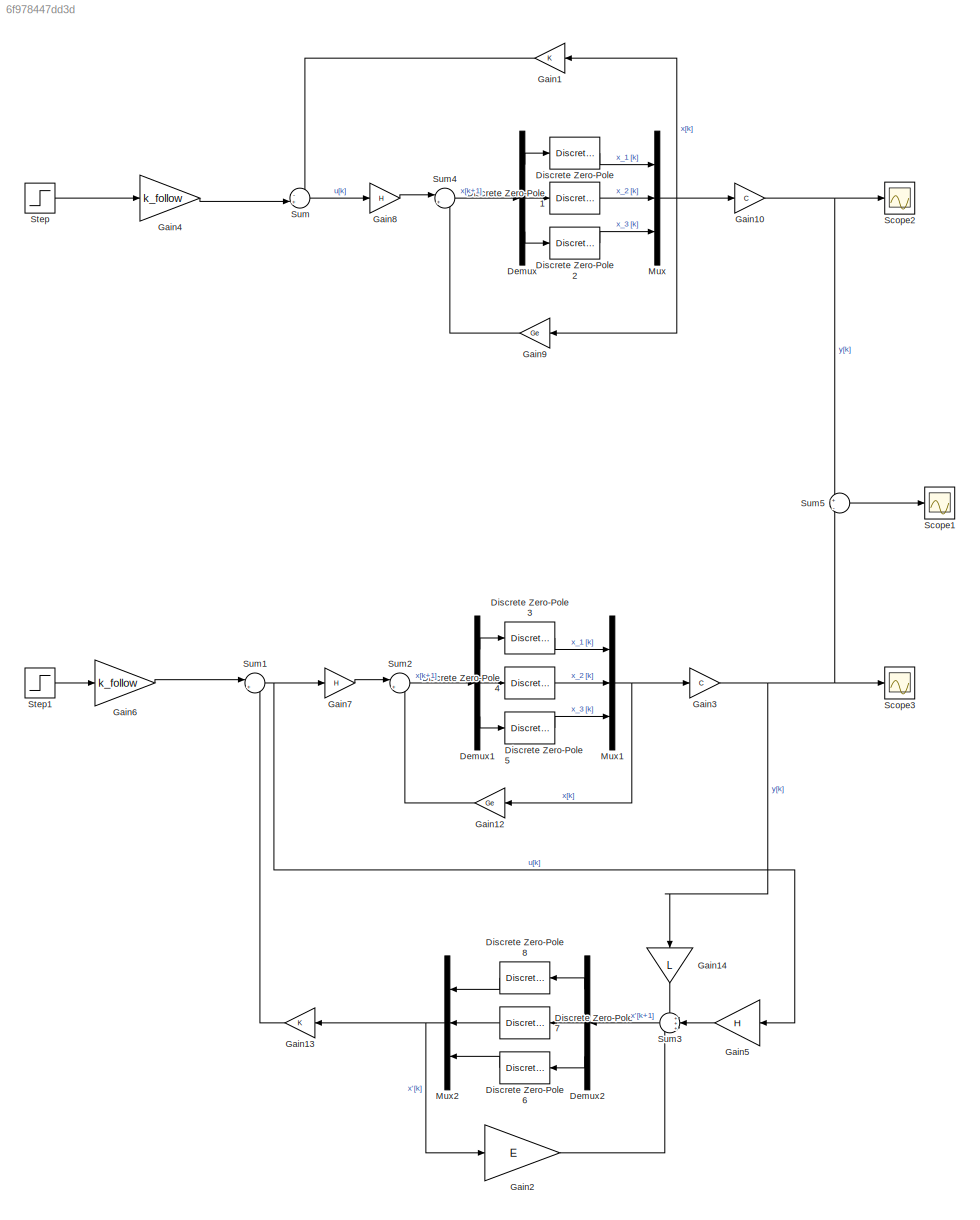
MODEL slx_6f978447dd3d
KIND model
CONFIG AbsTol = auto
CONFIG EnableMultiTasking = off
CONFIG FixedStep = auto
CONFIG MaxStep = auto
CONFIG MinStep = auto
CONFIG RelTol = 1e-3
CONFIG SampleTimeConstraint = Unconstrained
CONFIG SolverName = VariableStepAuto
CONFIG StartTime = 0.0
CONFIG StopTime = 5
BLOCK [Demux] Demux
  Outputs = 3
  Ports = [1, 3]
BLOCK [Demux] Demux1
  Outputs = 3
  Ports = [1, 3]
BLOCK [Demux] Demux2
  Outputs = 3
  Ports = [1, 3]
BLOCK [DiscreteZeroPole] Discrete Zero-Pole
  Gain = 1
  Poles = [0]
  SampleTime = Ts(2)
  Zeros = []
BLOCK [DiscreteZeroPole] Discrete Zero-Pole1
  Gain = 1
  Poles = [0]
  SampleTime = Ts(2)
  Zeros = []
BLOCK [DiscreteZeroPole] Discrete Zero-Pole2
  Gain = 1
  Poles = [0]
  SampleTime = Ts(2)
  Zeros = []
BLOCK [DiscreteZeroPole] Discrete Zero-Pole3
  Gain = 1
  Poles = [0]
  SampleTime = Ts(2)
  Zeros = []
BLOCK [DiscreteZeroPole] Discrete Zero-Pole4
  Gain = 1
  Poles = [0]
  SampleTime = Ts(2)
  Zeros = []
BLOCK [DiscreteZeroPole] Discrete Zero-Pole5
  Gain = 1
  Poles = [0]
  SampleTime = Ts(2)
  Zeros = []
BLOCK [DiscreteZeroPole] Discrete Zero-Pole6
  Gain = 1
  NameLocation = top
  Poles = [0]
  SampleTime = Ts(2)
  Zeros = []
BLOCK [DiscreteZeroPole] Discrete Zero-Pole7
  Gain = 1
  NameLocation = top
  Poles = [0]
  SampleTime = Ts(2)
  Zeros = []
BLOCK [DiscreteZeroPole] Discrete Zero-Pole8
  Gain = 1
  NameLocation = top
  Poles = [0]
  SampleTime = Ts(2)
  Zeros = []
BLOCK [Gain] Gain1
  Gain = K
  Multiplication = Matrix(K*u)
  NameLocation = top
BLOCK [Gain] Gain10
  Gain = C
  Multiplication = Matrix(K*u)
BLOCK [Gain] Gain12
  Gain = Ge
  Multiplication = Matrix(K*u)
  NameLocation = top
BLOCK [Gain] Gain13
  Gain = K
  Multiplication = Matrix(K*u)
  NameLocation = top
BLOCK [Gain] Gain14
  Gain = L
  Multiplication = Matrix(K*u)
  NameLocation = left
BLOCK [Gain] Gain2
  Gain = E
  Multiplication = Matrix(K*u)
BLOCK [Gain] Gain3
  Gain = C
  Multiplication = Matrix(K*u)
BLOCK [Gain] Gain4
  Gain = k_follow
BLOCK [Gain] Gain5
  Gain = H
  Multiplication = Matrix(K*u)
  NameLocation = top
BLOCK [Gain] Gain6
  Gain = k_follow
BLOCK [Gain] Gain7
  Gain = H
  Multiplication = Matrix(K*u)
BLOCK [Gain] Gain8
  Gain = H
  Multiplication = Matrix(K*u)
BLOCK [Gain] Gain9
  Gain = Ge
  Multiplication = Matrix(K*u)
  NameLocation = top
BLOCK [Mux] Mux
  DisplayOption = bar
  Inputs = 3
  Ports = [3, 1]
BLOCK [Mux] Mux1
  DisplayOption = bar
  Inputs = 3
  Ports = [3, 1]
BLOCK [Mux] Mux2
  DisplayOption = bar
  Inputs = 3
  Ports = [3, 1]
BLOCK [Scope] Scope1
  Floating = off
  NumInputPorts = 1
  Ports = [1]
  ScopeSpecificationString = Simulink.scopes.TimeScopeBlockCfg('CurrentConfiguration', extmgr.ConfigurationSet(extmgr.Configuration('Core','General UI',true),extmgr.Configuration('Core','Source UI',true),extmgr.Configuration('Sources','WiredSimulink',true,'DataLoggingVariableName','ScopeData1'),extmgr.Configuration('Visuals','Time Domain',true,'SerializedDisplays',{struct('MinYLimReal','-0.00000000000005','MaxYLimReal','0.000...<+1566ch>
BLOCK [Scope] Scope2
  Floating = off
  NumInputPorts = 1
  Ports = [1]
  ScopeSpecificationString = Simulink.scopes.TimeScopeBlockCfg('CurrentConfiguration', extmgr.ConfigurationSet(extmgr.Configuration('Core','General UI',true),extmgr.Configuration('Core','Source UI',true),extmgr.Configuration('Sources','WiredSimulink',true,'DataLoggingVariableName','ScopeData2'),extmgr.Configuration('Visuals','Time Domain',true,'SerializedDisplays',{struct('MinYLimReal','-0.125','MaxYLimReal','1.125','YLabelRe...<+1380ch>
BLOCK [Scope] Scope3
  Floating = off
  NumInputPorts = 1
  Ports = [1]
  ScopeSpecificationString = Simulink.scopes.TimeScopeBlockCfg('CurrentConfiguration', extmgr.ConfigurationSet(extmgr.Configuration('Core','General UI',true),extmgr.Configuration('Core','Source UI',true),extmgr.Configuration('Sources','WiredSimulink',true,'DataLoggingVariableName','ScopeData3'),extmgr.Configuration('Visuals','Time Domain',true,'SerializedDisplays',{struct('MinYLimReal','-0.125','MaxYLimReal','1.125','YLabelRe...<+1426ch>
BLOCK [Step] Step
  SampleTime = 0
  Time = 0
BLOCK [Step] Step1
  SampleTime = 0
  Time = 0
BLOCK [Sum] Sum
  Inputs = -+|
  Ports = [2, 1]
BLOCK [Sum] Sum1
  Inputs = |+-
  Ports = [2, 1]
BLOCK [Sum] Sum2
  Inputs = |++
  Ports = [2, 1]
BLOCK [Sum] Sum3
  Inputs = +++
  Ports = [3, 1]
BLOCK [Sum] Sum4
  Inputs = |++
  Ports = [2, 1]
BLOCK [Sum] Sum5
  Inputs = +|-
  Ports = [2, 1]
LINE Demux1:1 -> Discrete Zero-Pole3:1
LINE Demux1:2 -> Discrete Zero-Pole4:1
LINE Demux1:3 -> Discrete Zero-Pole5:1
LINE Demux2:1 -> Discrete Zero-Pole8:1
LINE Demux2:2 -> Discrete Zero-Pole7:1
LINE Demux2:3 -> Discrete Zero-Pole6:1
LINE Demux:1 -> Discrete Zero-Pole:1
LINE Demux:2 -> Discrete Zero-Pole1:1
LINE Demux:3 -> Discrete Zero-Pole2:1
LINE Discrete Zero-Pole1:1 -> Mux:2
LINE Discrete Zero-Pole2:1 -> Mux:3
LINE Discrete Zero-Pole3:1 -> Mux1:1
LINE Discrete Zero-Pole4:1 -> Mux1:2
LINE Discrete Zero-Pole5:1 -> Mux1:3
LINE Discrete Zero-Pole6:1 -> Mux2:3
LINE Discrete Zero-Pole7:1 -> Mux2:2
LINE Discrete Zero-Pole8:1 -> Mux2:1
LINE Discrete Zero-Pole:1 -> Mux:1
NET Gain10:1 -> Scope2:1, Sum5:1
LINE Gain12:1 -> Sum2:2
LINE Gain13:1 -> Sum1:2
LINE Gain14:1 -> Sum3:1
LINE Gain1:1 -> Sum:1
LINE Gain2:1 -> Sum3:3
NET Gain3:1 -> Gain14:1, Scope3:1, Sum5:2
LINE Gain4:1 -> Sum:2
LINE Gain5:1 -> Sum3:2
LINE Gain6:1 -> Sum1:1
LINE Gain7:1 -> Sum2:1
LINE Gain8:1 -> Sum4:1
LINE Gain9:1 -> Sum4:2
NET Mux1:1 -> Gain12:1, Gain3:1
NET Mux2:1 -> Gain13:1, Gain2:1
NET Mux:1 -> Gain10:1, Gain1:1, Gain9:1
LINE Step1:1 -> Gain6:1
LINE Step:1 -> Gain4:1
NET Sum1:1 -> Gain5:1, Gain7:1
LINE Sum2:1 -> Demux1:1
LINE Sum3:1 -> Demux2:1
LINE Sum4:1 -> Demux:1
LINE Sum5:1 -> Scope1:1
LINE Sum:1 -> Gain8:1
note: NET lines group one-source signal fan-out (src -> all destinations, sorted); 1:1 wires keep LINE
